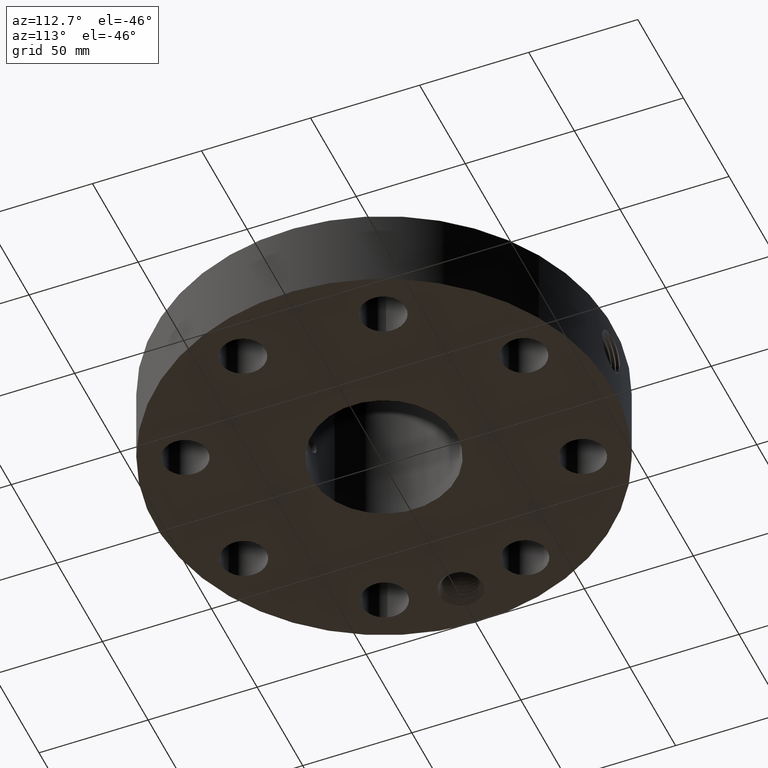
[diagram: clean part render]
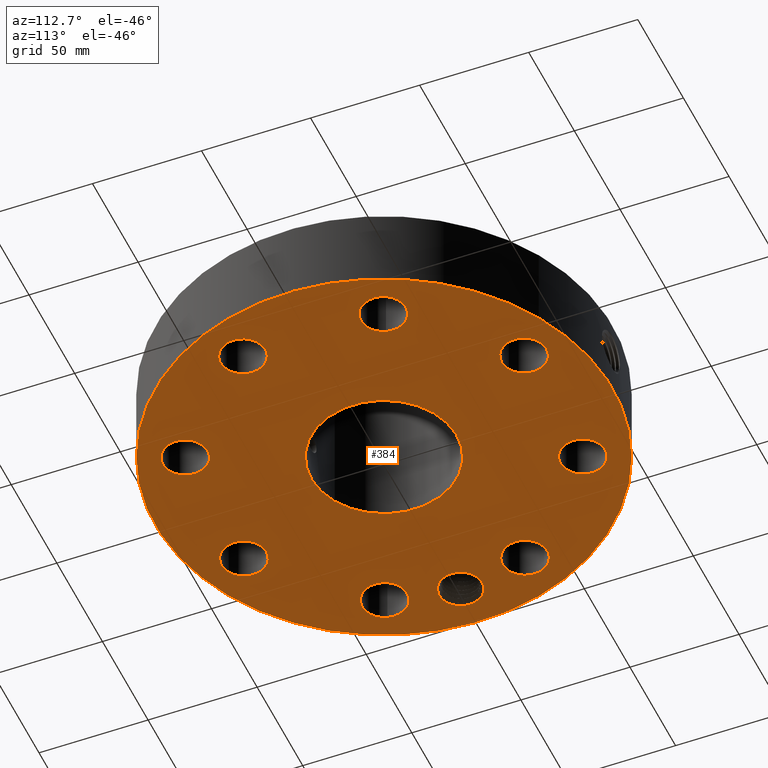
[diagram: same view with one face highlighted and labeled with its STEP entity id]
A machine part, auxiliary view. The second image highlights one B-rep face of the part: STEP entity #384.
In plain terms, the highlighted planar face has unit normal (0, 0, -1).
Its self-contained STEP definition (entity closure, byte-faithful):
#42=AXIS2_PLACEMENT_3D('Circle Axis2P3D',#40,#41,$) ;
#193=AXIS2_PLACEMENT_3D('Plane Axis2P3D',#190,#191,#192) ;
#197=AXIS2_PLACEMENT_3D('Circle Axis2P3D',#195,#196,$) ;
#206=AXIS2_PLACEMENT_3D('Circle Axis2P3D',#204,#205,$) ;
#215=AXIS2_PLACEMENT_3D('Circle Axis2P3D',#213,#214,$) ;
#224=AXIS2_PLACEMENT_3D('Circle Axis2P3D',#222,#223,$) ;
#233=AXIS2_PLACEMENT_3D('Circle Axis2P3D',#231,#232,$) ;
#242=AXIS2_PLACEMENT_3D('Circle Axis2P3D',#240,#241,$) ;
#251=AXIS2_PLACEMENT_3D('Circle Axis2P3D',#249,#250,$) ;
#260=AXIS2_PLACEMENT_3D('Circle Axis2P3D',#258,#259,$) ;
#269=AXIS2_PLACEMENT_3D('Circle Axis2P3D',#267,#268,$) ;
#278=AXIS2_PLACEMENT_3D('Circle Axis2P3D',#276,#277,$) ;
#287=AXIS2_PLACEMENT_3D('Circle Axis2P3D',#285,#286,$) ;
#296=AXIS2_PLACEMENT_3D('Circle Axis2P3D',#294,#295,$) ;
#305=AXIS2_PLACEMENT_3D('Circle Axis2P3D',#303,#304,$) ;
#314=AXIS2_PLACEMENT_3D('Circle Axis2P3D',#312,#313,$) ;
#323=AXIS2_PLACEMENT_3D('Circle Axis2P3D',#321,#322,$) ;
#332=AXIS2_PLACEMENT_3D('Circle Axis2P3D',#330,#331,$) ;
#341=AXIS2_PLACEMENT_3D('Circle Axis2P3D',#339,#340,$) ;
#350=AXIS2_PLACEMENT_3D('Circle Axis2P3D',#348,#349,$) ;
#359=AXIS2_PLACEMENT_3D('Circle Axis2P3D',#357,#358,$) ;
#368=AXIS2_PLACEMENT_3D('Circle Axis2P3D',#366,#367,$) ;
#377=AXIS2_PLACEMENT_3D('Circle Axis2P3D',#375,#376,$) ;
#40=CARTESIAN_POINT('Axis2P3D Location',(0.,0.,0.0600000000002)) ;
#44=CARTESIAN_POINT('Vertex',(-1.97763034675,-3.62002806781,0.0600000000002)) ;
#46=CARTESIAN_POINT('Vertex',(1.97763034675,3.62002806781,0.0600000000002)) ;
#190=CARTESIAN_POINT('Axis2P3D Location',(0.,1.31200000001,0.0600000000002)) ;
#195=CARTESIAN_POINT('Axis2P3D Location',(0.,0.,0.0600000000002)) ;
#204=CARTESIAN_POINT('Axis2P3D Location',(-3.31000000001,-2.79741234551E-016,0.0600000000002)) ;
#208=CARTESIAN_POINT('Vertex',(-2.96938826818,-0.186077037172,0.0600000000002)) ;
#210=CARTESIAN_POINT('Vertex',(-3.65061173185,0.186077037172,0.0600000000002)) ;
#213=CARTESIAN_POINT('Axis2P3D Location',(-3.31000000001,-2.79741234551E-016,0.0600000000002)) ;
#222=CARTESIAN_POINT('Axis2P3D Location',(3.05804125262,-1.26668216113,0.0600000000002)) ;
#226=CARTESIAN_POINT('Vertex',(3.41346219019,-1.46084950427,0.0600000000002)) ;
#228=CARTESIAN_POINT('Vertex',(2.70262031506,-1.072514818,0.0600000000002)) ;
#231=CARTESIAN_POINT('Axis2P3D Location',(3.05804125262,-1.26668216113,0.0600000000002)) ;
#240=CARTESIAN_POINT('Axis2P3D Location',(0.,0.,0.0600000000002)) ;
#244=CARTESIAN_POINT('Vertex',(0.629006306651,1.1513883212,0.0600000000002)) ;
#246=CARTESIAN_POINT('Vertex',(-0.629006306651,-1.1513883212,0.0600000000002)) ;
#249=CARTESIAN_POINT('Axis2P3D Location',(0.,0.,0.0600000000002)) ;
#258=CARTESIAN_POINT('Axis2P3D Location',(1.26668216113,-3.05804125262,0.0600000000002)) ;
#262=CARTESIAN_POINT('Vertex',(1.15265865102,-2.66942365248,0.0600000000002)) ;
#264=CARTESIAN_POINT('Vertex',(1.38070567125,-3.44665885277,0.0600000000002)) ;
#267=CARTESIAN_POINT('Axis2P3D Location',(1.26668216113,-3.05804125262,0.0600000000002)) ;
#276=CARTESIAN_POINT('Axis2P3D Location',(-1.26668216113,-3.05804125262,0.0600000000002)) ;
#280=CARTESIAN_POINT('Vertex',(-1.072514818,-2.70262031506,0.0600000000002)) ;
#282=CARTESIAN_POINT('Vertex',(-1.46084950427,-3.41346219019,0.0600000000002)) ;
#285=CARTESIAN_POINT('Axis2P3D Location',(-1.26668216113,-3.05804125262,0.0600000000002)) ;
#294=CARTESIAN_POINT('Axis2P3D Location',(-3.05804125262,-1.26668216113,0.0600000000002)) ;
#298=CARTESIAN_POINT('Vertex',(-2.66942365248,-1.15265865102,0.0600000000002)) ;
#300=CARTESIAN_POINT('Vertex',(-3.44665885277,-1.38070567125,0.0600000000002)) ;
#303=CARTESIAN_POINT('Axis2P3D Location',(-3.05804125262,-1.26668216113,0.0600000000002)) ;
#312=CARTESIAN_POINT('Axis2P3D Location',(-3.05804125262,1.26668216113,0.0600000000002)) ;
#316=CARTESIAN_POINT('Vertex',(-2.70262031506,1.072514818,0.0600000000002)) ;
#318=CARTESIAN_POINT('Vertex',(-3.41346219019,1.46084950427,0.0600000000002)) ;
#321=CARTESIAN_POINT('Axis2P3D Location',(-3.05804125262,1.26668216113,0.0600000000002)) ;
#330=CARTESIAN_POINT('Axis2P3D Location',(-1.26668216113,3.05804125262,0.0600000000002)) ;
#334=CARTESIAN_POINT('Vertex',(-1.15265865102,2.66942365248,0.0600000000002)) ;
#336=CARTESIAN_POINT('Vertex',(-1.38070567125,3.44665885277,0.0600000000002)) ;
#339=CARTESIAN_POINT('Axis2P3D Location',(-1.26668216113,3.05804125262,0.0600000000002)) ;
#348=CARTESIAN_POINT('Axis2P3D Location',(1.26668216113,3.05804125262,0.0600000000002)) ;
#352=CARTESIAN_POINT('Vertex',(1.072514818,2.70262031506,0.0600000000002)) ;
#354=CARTESIAN_POINT('Vertex',(1.46084950427,3.41346219019,0.0600000000002)) ;
#357=CARTESIAN_POINT('Axis2P3D Location',(1.26668216113,3.05804125262,0.0600000000002)) ;
#366=CARTESIAN_POINT('Axis2P3D Location',(3.05804125262,1.26668216113,0.0600000000002)) ;
#370=CARTESIAN_POINT('Vertex',(2.66942365248,1.15265865102,0.0600000000002)) ;
#372=CARTESIAN_POINT('Vertex',(3.44665885277,1.38070567125,0.0600000000002)) ;
#375=CARTESIAN_POINT('Axis2P3D Location',(3.05804125262,1.26668216113,0.0600000000002)) ;
#41=DIRECTION('Axis2P3D Direction',(0.,0.,-0.0393700787402)) ;
#191=DIRECTION('Axis2P3D Direction',(0.,0.,-0.0393700787402)) ;
#192=DIRECTION('Axis2P3D XDirection',(0.0393700787402,0.,0.)) ;
#196=DIRECTION('Axis2P3D Direction',(0.,0.,-0.0393700787402)) ;
#205=DIRECTION('Axis2P3D Direction',(0.,0.,-0.0393700787402)) ;
#214=DIRECTION('Axis2P3D Direction',(0.,0.,-0.0393700787402)) ;
#223=DIRECTION('Axis2P3D Direction',(0.,0.,-0.0393700787402)) ;
#232=DIRECTION('Axis2P3D Direction',(0.,0.,-0.0393700787402)) ;
#241=DIRECTION('Axis2P3D Direction',(0.,0.,-0.0393700787402)) ;
#250=DIRECTION('Axis2P3D Direction',(0.,0.,-0.0393700787402)) ;
#259=DIRECTION('Axis2P3D Direction',(0.,0.,-0.0393700787402)) ;
#268=DIRECTION('Axis2P3D Direction',(0.,0.,-0.0393700787402)) ;
#277=DIRECTION('Axis2P3D Direction',(0.,0.,-0.0393700787402)) ;
#286=DIRECTION('Axis2P3D Direction',(0.,0.,-0.0393700787402)) ;
#295=DIRECTION('Axis2P3D Direction',(0.,0.,-0.0393700787402)) ;
#304=DIRECTION('Axis2P3D Direction',(0.,0.,-0.0393700787402)) ;
#313=DIRECTION('Axis2P3D Direction',(0.,0.,-0.0393700787402)) ;
#322=DIRECTION('Axis2P3D Direction',(0.,0.,-0.0393700787402)) ;
#331=DIRECTION('Axis2P3D Direction',(0.,0.,-0.0393700787402)) ;
#340=DIRECTION('Axis2P3D Direction',(0.,0.,-0.0393700787402)) ;
#349=DIRECTION('Axis2P3D Direction',(0.,0.,-0.0393700787402)) ;
#358=DIRECTION('Axis2P3D Direction',(0.,0.,-0.0393700787402)) ;
#367=DIRECTION('Axis2P3D Direction',(0.,0.,-0.0393700787402)) ;
#376=DIRECTION('Axis2P3D Direction',(0.,0.,-0.0393700787402)) ;
#201=ORIENTED_EDGE('',*,*,#48,.T.) ;
#202=ORIENTED_EDGE('',*,*,#199,.T.) ;
#219=ORIENTED_EDGE('',*,*,#212,.F.) ;
#220=ORIENTED_EDGE('',*,*,#217,.F.) ;
#237=ORIENTED_EDGE('',*,*,#230,.F.) ;
#238=ORIENTED_EDGE('',*,*,#235,.F.) ;
#255=ORIENTED_EDGE('',*,*,#248,.F.) ;
#256=ORIENTED_EDGE('',*,*,#253,.F.) ;
#273=ORIENTED_EDGE('',*,*,#266,.F.) ;
#274=ORIENTED_EDGE('',*,*,#271,.F.) ;
#291=ORIENTED_EDGE('',*,*,#284,.F.) ;
#292=ORIENTED_EDGE('',*,*,#289,.F.) ;
#309=ORIENTED_EDGE('',*,*,#302,.F.) ;
#310=ORIENTED_EDGE('',*,*,#307,.F.) ;
#327=ORIENTED_EDGE('',*,*,#320,.F.) ;
#328=ORIENTED_EDGE('',*,*,#325,.F.) ;
#345=ORIENTED_EDGE('',*,*,#338,.F.) ;
#346=ORIENTED_EDGE('',*,*,#343,.F.) ;
#363=ORIENTED_EDGE('',*,*,#356,.F.) ;
#364=ORIENTED_EDGE('',*,*,#361,.F.) ;
#381=ORIENTED_EDGE('',*,*,#374,.F.) ;
#382=ORIENTED_EDGE('',*,*,#379,.F.) ;
#221=FACE_BOUND('',#218,.T.) ;
#239=FACE_BOUND('',#236,.T.) ;
#257=FACE_BOUND('',#254,.T.) ;
#275=FACE_BOUND('',#272,.T.) ;
#293=FACE_BOUND('',#290,.T.) ;
#311=FACE_BOUND('',#308,.T.) ;
#329=FACE_BOUND('',#326,.T.) ;
#347=FACE_BOUND('',#344,.T.) ;
#365=FACE_BOUND('',#362,.T.) ;
#383=FACE_BOUND('',#380,.T.) ;
#384=ADVANCED_FACE('PartBody',(#203,#221,#239,#257,#275,#293,#311,#329,#347,#365,#383),#194,.T.) ;
#43=CIRCLE('generated circle',#42,4.12500000002) ;
#198=CIRCLE('generated circle',#197,4.12500000002) ;
#207=CIRCLE('generated circle',#206,0.388125000002) ;
#216=CIRCLE('generated circle',#215,0.388125000002) ;
#225=CIRCLE('generated circle',#224,0.405000000002) ;
#234=CIRCLE('generated circle',#233,0.405000000002) ;
#243=CIRCLE('generated circle',#242,1.31200000001) ;
#252=CIRCLE('generated circle',#251,1.31200000001) ;
#261=CIRCLE('generated circle',#260,0.405000000002) ;
#270=CIRCLE('generated circle',#269,0.405000000002) ;
#279=CIRCLE('generated circle',#278,0.405000000002) ;
#288=CIRCLE('generated circle',#287,0.405000000002) ;
#297=CIRCLE('generated circle',#296,0.405000000002) ;
#306=CIRCLE('generated circle',#305,0.405000000002) ;
#315=CIRCLE('generated circle',#314,0.405000000002) ;
#324=CIRCLE('generated circle',#323,0.405000000002) ;
#333=CIRCLE('generated circle',#332,0.405000000002) ;
#342=CIRCLE('generated circle',#341,0.405000000002) ;
#351=CIRCLE('generated circle',#350,0.405000000002) ;
#360=CIRCLE('generated circle',#359,0.405000000002) ;
#369=CIRCLE('generated circle',#368,0.405000000002) ;
#378=CIRCLE('generated circle',#377,0.405000000002) ;
#48=EDGE_CURVE('',#45,#47,#43,.T.) ;
#199=EDGE_CURVE('',#47,#45,#198,.T.) ;
#212=EDGE_CURVE('',#209,#211,#207,.T.) ;
#217=EDGE_CURVE('',#211,#209,#216,.T.) ;
#230=EDGE_CURVE('',#227,#229,#225,.T.) ;
#235=EDGE_CURVE('',#229,#227,#234,.T.) ;
#248=EDGE_CURVE('',#245,#247,#243,.T.) ;
#253=EDGE_CURVE('',#247,#245,#252,.T.) ;
#266=EDGE_CURVE('',#263,#265,#261,.T.) ;
#271=EDGE_CURVE('',#265,#263,#270,.T.) ;
#284=EDGE_CURVE('',#281,#283,#279,.T.) ;
#289=EDGE_CURVE('',#283,#281,#288,.T.) ;
#302=EDGE_CURVE('',#299,#301,#297,.T.) ;
#307=EDGE_CURVE('',#301,#299,#306,.T.) ;
#320=EDGE_CURVE('',#317,#319,#315,.T.) ;
#325=EDGE_CURVE('',#319,#317,#324,.T.) ;
#338=EDGE_CURVE('',#335,#337,#333,.T.) ;
#343=EDGE_CURVE('',#337,#335,#342,.T.) ;
#356=EDGE_CURVE('',#353,#355,#351,.T.) ;
#361=EDGE_CURVE('',#355,#353,#360,.T.) ;
#374=EDGE_CURVE('',#371,#373,#369,.T.) ;
#379=EDGE_CURVE('',#373,#371,#378,.T.) ;
#200=EDGE_LOOP('',(#201,#202)) ;
#218=EDGE_LOOP('',(#219,#220)) ;
#236=EDGE_LOOP('',(#237,#238)) ;
#254=EDGE_LOOP('',(#255,#256)) ;
#272=EDGE_LOOP('',(#273,#274)) ;
#290=EDGE_LOOP('',(#291,#292)) ;
#308=EDGE_LOOP('',(#309,#310)) ;
#326=EDGE_LOOP('',(#327,#328)) ;
#344=EDGE_LOOP('',(#345,#346)) ;
#362=EDGE_LOOP('',(#363,#364)) ;
#380=EDGE_LOOP('',(#381,#382)) ;
#203=FACE_OUTER_BOUND('',#200,.T.) ;
#194=PLANE('',#193) ;
#45=VERTEX_POINT('',#44) ;
#47=VERTEX_POINT('',#46) ;
#209=VERTEX_POINT('',#208) ;
#211=VERTEX_POINT('',#210) ;
#227=VERTEX_POINT('',#226) ;
#229=VERTEX_POINT('',#228) ;
#245=VERTEX_POINT('',#244) ;
#247=VERTEX_POINT('',#246) ;
#263=VERTEX_POINT('',#262) ;
#265=VERTEX_POINT('',#264) ;
#281=VERTEX_POINT('',#280) ;
#283=VERTEX_POINT('',#282) ;
#299=VERTEX_POINT('',#298) ;
#301=VERTEX_POINT('',#300) ;
#317=VERTEX_POINT('',#316) ;
#319=VERTEX_POINT('',#318) ;
#335=VERTEX_POINT('',#334) ;
#337=VERTEX_POINT('',#336) ;
#353=VERTEX_POINT('',#352) ;
#355=VERTEX_POINT('',#354) ;
#371=VERTEX_POINT('',#370) ;
#373=VERTEX_POINT('',#372) ;